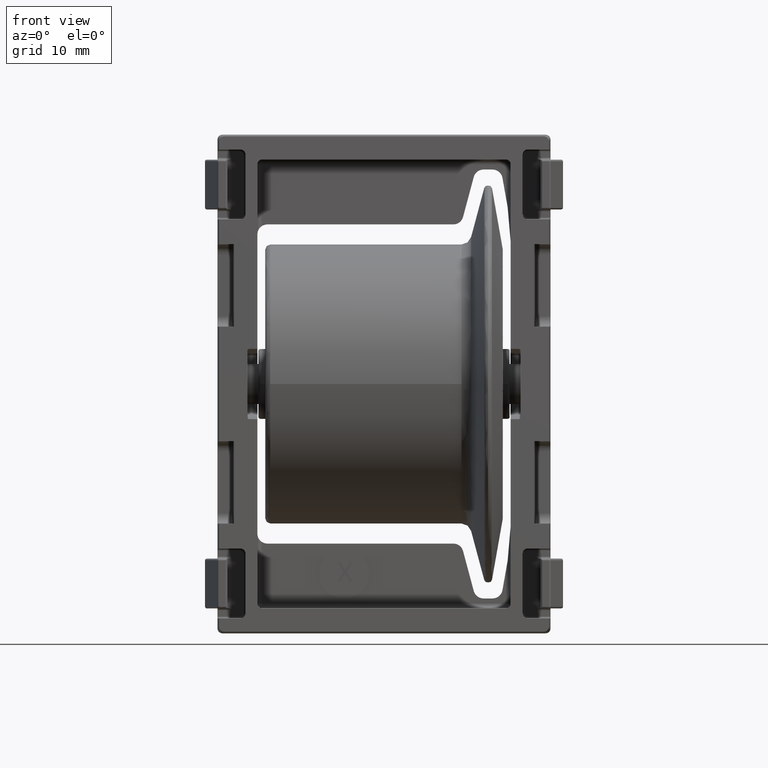
[diagram: clean part render]
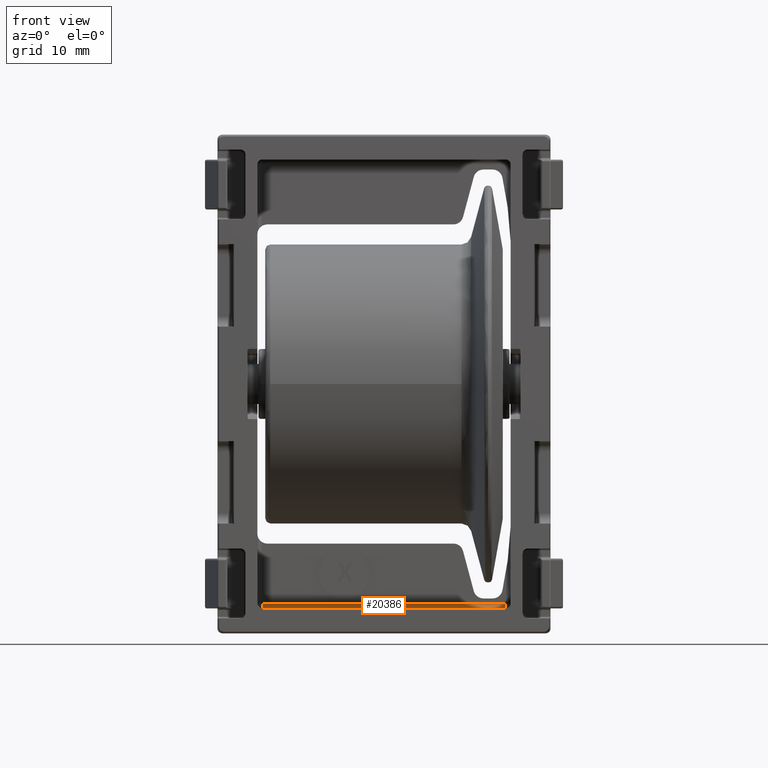
[diagram: same view with one face highlighted and labeled with its STEP entity id]
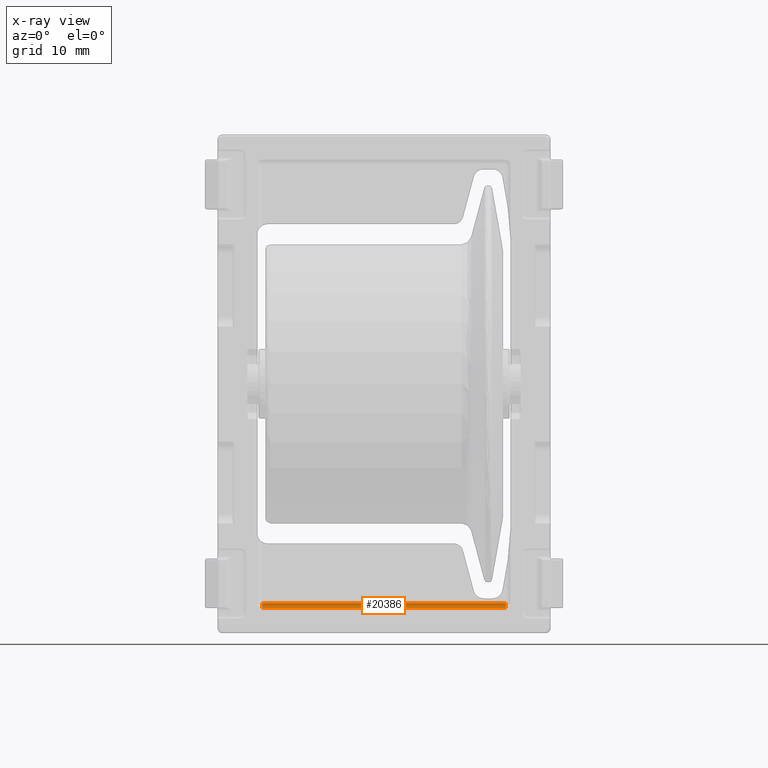
[diagram: x-ray of the same camera — body ghosted, the highlighted face saturated]
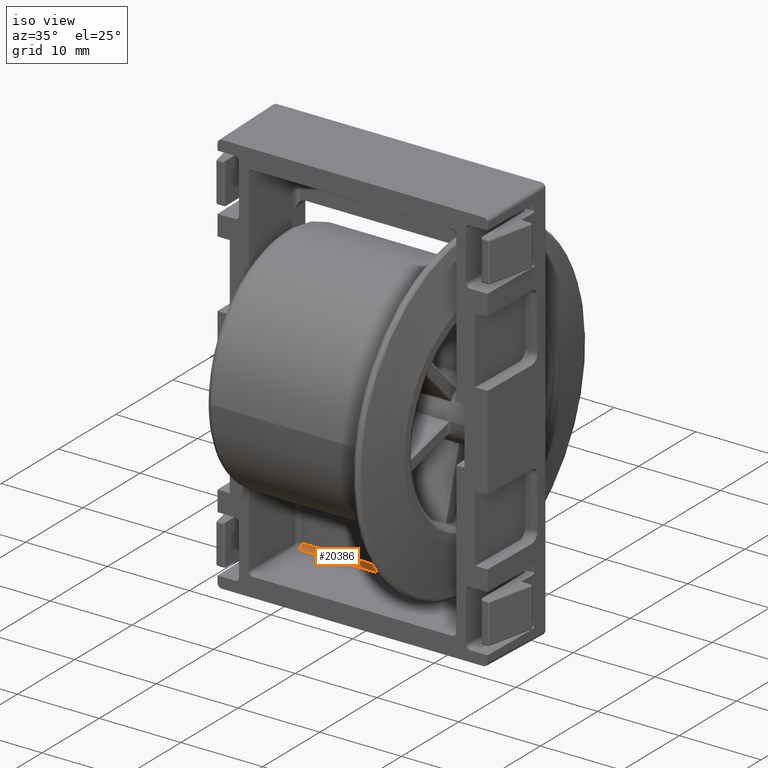
[diagram: same view with one face highlighted and labeled with its STEP entity id]
A machine part, front view. The second image highlights one B-rep face of the part: STEP entity #20386.
The next image is the same camera in x-ray: the body ghosted, the highlighted face saturated — about 0% of this face is hidden behind the body in this view.
A second angle (iso view) of the same face is appended — the face is thin or edge-on in the first view.
In plain terms, the highlighted cylindrical surface (edge-blend (fillet) strip) has radius 0.5 mm, axis along (-1, 0, 0).
Its self-contained STEP definition (entity closure, byte-faithful):
#301 = CARTESIAN_POINT ( 'NONE',  ( -12.19999999999999900, -1.500000000000000000, -22.00000000000000000 ) ) ;
#817 = CYLINDRICAL_SURFACE ( 'NONE', #23539, 0.5000000000000004400 ) ;
#1166 = VECTOR ( 'NONE', #19964, 1000.000000000000000 ) ;
#2682 = VERTEX_POINT ( 'NONE', #3278 ) ;
#2812 = ORIENTED_EDGE ( 'NONE', *, *, #6316, .T. ) ;
#3278 = CARTESIAN_POINT ( 'NONE',  ( 12.19999999999999900, -2.000000000000000400, -22.50000000000000000 ) ) ;
#5065 = VERTEX_POINT ( 'NONE', #301 ) ;
#5358 = DIRECTION ( 'NONE',  ( 1.000000000000000000, -0.0000000000000000000, -2.731847993664259800E-016 ) ) ;
#5486 = FACE_OUTER_BOUND ( 'NONE', #16767, .T. ) ;
#5746 = EDGE_CURVE ( 'NONE', #8343, #5065, #28545, .T. ) ;
#6316 = EDGE_CURVE ( 'NONE', #2682, #8440, #26412, .T. ) ;
#6369 = CARTESIAN_POINT ( 'NONE',  ( -6.010065586061370000E-015, -2.000000000000000000, -22.00000000000000000 ) ) ;
#8304 = DIRECTION ( 'NONE',  ( 0.0000000000000000000, 0.0000000000000000000, -1.000000000000000000 ) ) ;
#8343 = VERTEX_POINT ( 'NONE', #13868 ) ;
#8440 = VERTEX_POINT ( 'NONE', #24083 ) ;
#8851 = ORIENTED_EDGE ( 'NONE', *, *, #5746, .F. ) ;
#9892 = ORIENTED_EDGE ( 'NONE', *, *, #28583, .T. ) ;
#13005 = DIRECTION ( 'NONE',  ( -1.000000000000000000, 0.0000000000000000000, 2.731847993664259800E-016 ) ) ;
#13868 = CARTESIAN_POINT ( 'NONE',  ( -12.19999999999999900, -2.000000000000001300, -22.50000000000000000 ) ) ;
#16767 = EDGE_LOOP ( 'NONE', ( #9892, #2812, #24977, #8851 ) ) ;
#17043 = LINE ( 'NONE', #24327, #1166 ) ;
#18320 = LINE ( 'NONE', #27710, #26787 ) ;
#19964 = DIRECTION ( 'NONE',  ( -1.000000000000000000, -0.0000000000000000000, 0.0000000000000000000 ) ) ;
#20386 = ADVANCED_FACE ( 'NONE', ( #5486 ), #817, .F. ) ;
#20396 = EDGE_CURVE ( 'NONE', #8440, #5065, #17043, .T. ) ;
#21864 = DIRECTION ( 'NONE',  ( 1.000000000000000000, 0.0000000000000000000, 0.0000000000000000000 ) ) ;
#23539 = AXIS2_PLACEMENT_3D ( 'NONE', #6369, #13005, #28538 ) ;
#24083 = CARTESIAN_POINT ( 'NONE',  ( 12.19999999999999900, -1.500000000000000000, -22.00000000000000000 ) ) ;
#24327 = CARTESIAN_POINT ( 'NONE',  ( 0.0000000000000000000, -1.500000000000000000, -22.00000000000000000 ) ) ;
#24816 = AXIS2_PLACEMENT_3D ( 'NONE', #26093, #21864, #8304 ) ;
#24977 = ORIENTED_EDGE ( 'NONE', *, *, #20396, .T. ) ;
#24978 = AXIS2_PLACEMENT_3D ( 'NONE', #26919, #29185, #29084 ) ;
#26093 = CARTESIAN_POINT ( 'NONE',  ( 12.19999999999999900, -2.000000000000000000, -22.00000000000000000 ) ) ;
#26412 = CIRCLE ( 'NONE', #24816, 0.5000000000000004400 ) ;
#26787 = VECTOR ( 'NONE', #5358, 1000.000000000000000 ) ;
#26919 = CARTESIAN_POINT ( 'NONE',  ( -12.19999999999999900, -2.000000000000000000, -21.99999999999999600 ) ) ;
#27710 = CARTESIAN_POINT ( 'NONE',  ( 12.69999999999999900, -2.000000000000001800, -22.50000000000000000 ) ) ;
#28538 = DIRECTION ( 'NONE',  ( 2.731847993664255800E-016, 0.0000000000000000000, 1.000000000000000000 ) ) ;
#28545 = CIRCLE ( 'NONE', #24978, 0.5000000000000004400 ) ;
#28583 = EDGE_CURVE ( 'NONE', #8343, #2682, #18320, .T. ) ;
#29084 = DIRECTION ( 'NONE',  ( 0.0000000000000000000, 0.0000000000000000000, 1.000000000000000000 ) ) ;
#29185 = DIRECTION ( 'NONE',  ( 1.000000000000000000, -0.0000000000000000000, -2.731847993664259800E-016 ) ) ;